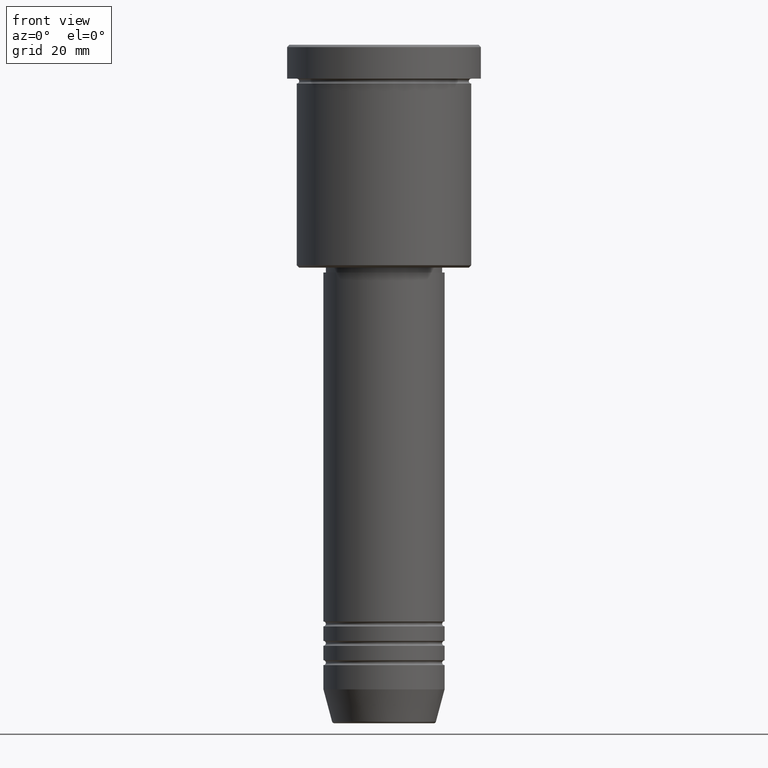
[diagram: clean part render]
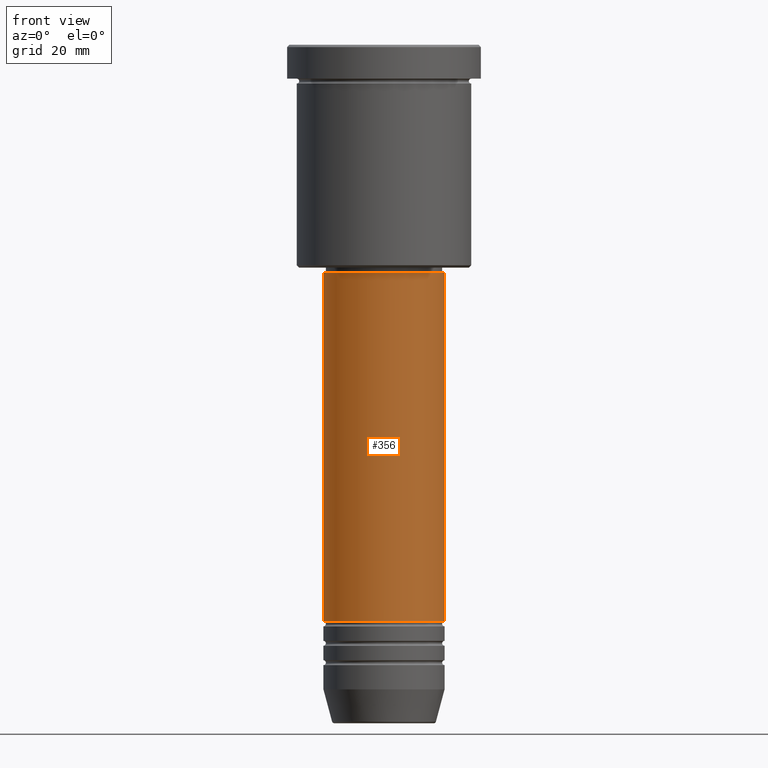
[diagram: same view with one face highlighted and labeled with its STEP entity id]
A machine part, front view. The second image highlights one B-rep face of the part: STEP entity #356.
In plain terms, the highlighted cylindrical surface (partial cylindrical patch) has radius 12.5 mm, axis along (-0, -0, 1).
Its self-contained STEP definition (entity closure, byte-faithful):
#14 = VERTEX_POINT ( 'NONE', #738 ) ;
#38 = EDGE_CURVE ( 'NONE', #875, #63, #234, .T. ) ;
#56 = ORIENTED_EDGE ( 'NONE', *, *, #314, .F. ) ;
#63 = VERTEX_POINT ( 'NONE', #638 ) ;
#88 = DIRECTION ( 'NONE',  ( -0.000000000000000000, -0.000000000000000000, 1.000000000000000000 ) ) ;
#129 = CARTESIAN_POINT ( 'NONE',  ( 0.000000000000000000, 0.000000000000000000, 0.000000000000000000 ) ) ;
#134 = VECTOR ( 'NONE', #740, 1000.000000000000000 ) ;
#141 = DIRECTION ( 'NONE',  ( -0.000000000000000000, -0.000000000000000000, 1.000000000000000000 ) ) ;
#186 = DIRECTION ( 'NONE',  ( -0.000000000000000000, -0.000000000000000000, 1.000000000000000000 ) ) ;
#234 = CIRCLE ( 'NONE', #388, 12.50000000000000000 ) ;
#244 = DIRECTION ( 'NONE',  ( -0.000000000000000000, -0.000000000000000000, 1.000000000000000000 ) ) ;
#269 = ORIENTED_EDGE ( 'NONE', *, *, #437, .F. ) ;
#284 = LINE ( 'NONE', #1183, #134 ) ;
#314 = EDGE_CURVE ( 'NONE', #403, #14, #432, .T. ) ;
#317 = ORIENTED_EDGE ( 'NONE', *, *, #38, .T. ) ;
#344 = ORIENTED_EDGE ( 'NONE', *, *, #412, .T. ) ;
#356 = ADVANCED_FACE ( 'NONE', ( #591 ), #967, .T. ) ;
#378 = LINE ( 'NONE', #532, #783 ) ;
#388 = AXIS2_PLACEMENT_3D ( 'NONE', #633, #88, #554 ) ;
#403 = VERTEX_POINT ( 'NONE', #1028 ) ;
#412 = EDGE_CURVE ( 'NONE', #63, #14, #378, .T. ) ;
#424 = EDGE_LOOP ( 'NONE', ( #269, #317, #344, #56 ) ) ;
#432 = CIRCLE ( 'NONE', #932, 12.50000000000000000 ) ;
#437 = EDGE_CURVE ( 'NONE', #875, #403, #284, .T. ) ;
#532 = CARTESIAN_POINT ( 'NONE',  ( 12.50000000000000000, 0.000000000000000000, 0.000000000000000000 ) ) ;
#554 = DIRECTION ( 'NONE',  ( 1.000000000000000000, 0.000000000000000000, 0.000000000000000000 ) ) ;
#563 = AXIS2_PLACEMENT_3D ( 'NONE', #129, #244, #796 ) ;
#591 = FACE_OUTER_BOUND ( 'NONE', #424, .T. ) ;
#633 = CARTESIAN_POINT ( 'NONE',  ( 0.000000000000000000, 0.000000000000000000, -119.0000000000000000 ) ) ;
#638 = CARTESIAN_POINT ( 'NONE',  ( 12.50000000000000000, 0.000000000000000000, -119.0000000000000000 ) ) ;
#738 = CARTESIAN_POINT ( 'NONE',  ( 12.50000000000000000, 0.000000000000000000, -47.00000000000003553 ) ) ;
#740 = DIRECTION ( 'NONE',  ( -0.000000000000000000, -0.000000000000000000, 1.000000000000000000 ) ) ;
#783 = VECTOR ( 'NONE', #186, 1000.000000000000000 ) ;
#796 = DIRECTION ( 'NONE',  ( 1.000000000000000000, 0.000000000000000000, 0.000000000000000000 ) ) ;
#875 = VERTEX_POINT ( 'NONE', #1046 ) ;
#885 = DIRECTION ( 'NONE',  ( 1.000000000000000000, 0.000000000000000000, 0.000000000000000000 ) ) ;
#932 = AXIS2_PLACEMENT_3D ( 'NONE', #1070, #141, #885 ) ;
#967 = CYLINDRICAL_SURFACE ( 'NONE', #563, 12.50000000000000000 ) ;
#1028 = CARTESIAN_POINT ( 'NONE',  ( -12.50000000000000000, 1.530808498934191521E-15, -47.00000000000003553 ) ) ;
#1046 = CARTESIAN_POINT ( 'NONE',  ( -12.50000000000000000, 1.530808498934191521E-15, -119.0000000000000000 ) ) ;
#1070 = CARTESIAN_POINT ( 'NONE',  ( 0.000000000000000000, 0.000000000000000000, -47.00000000000003553 ) ) ;
#1183 = CARTESIAN_POINT ( 'NONE',  ( -12.50000000000000000, 1.530808498934191521E-15, 0.000000000000000000 ) ) ;